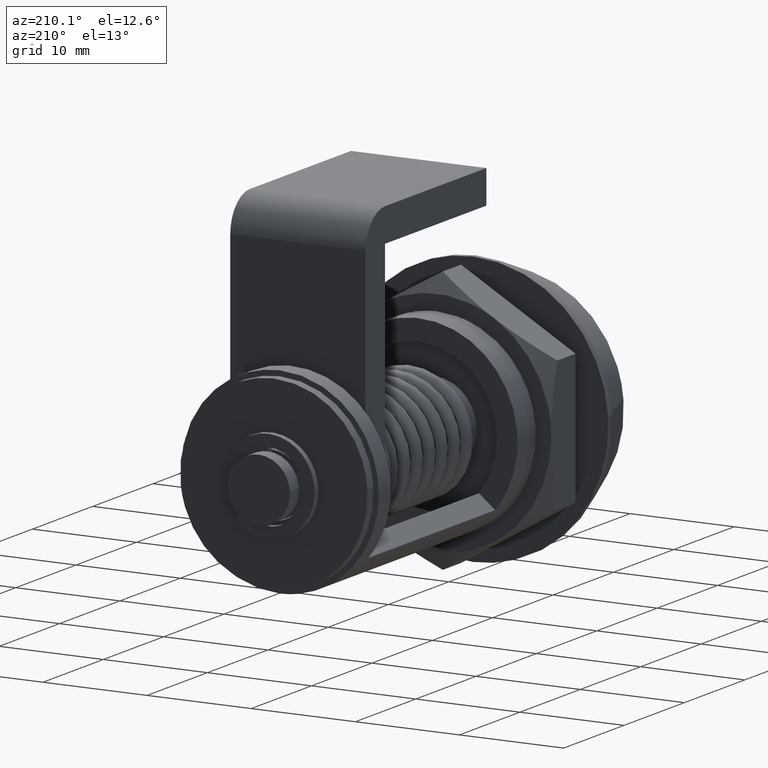
[diagram: clean part render]
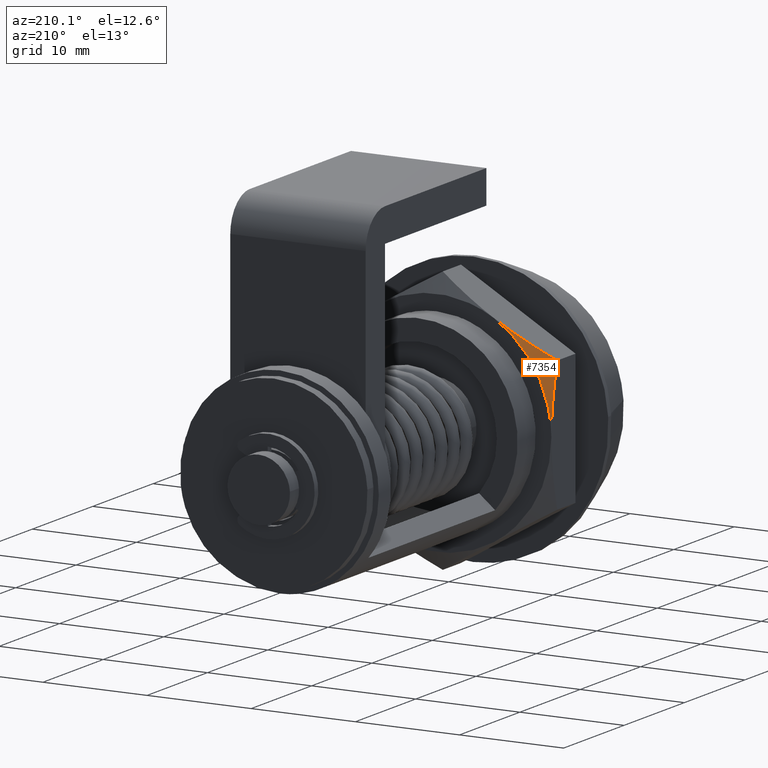
[diagram: same view with one face highlighted and labeled with its STEP entity id]
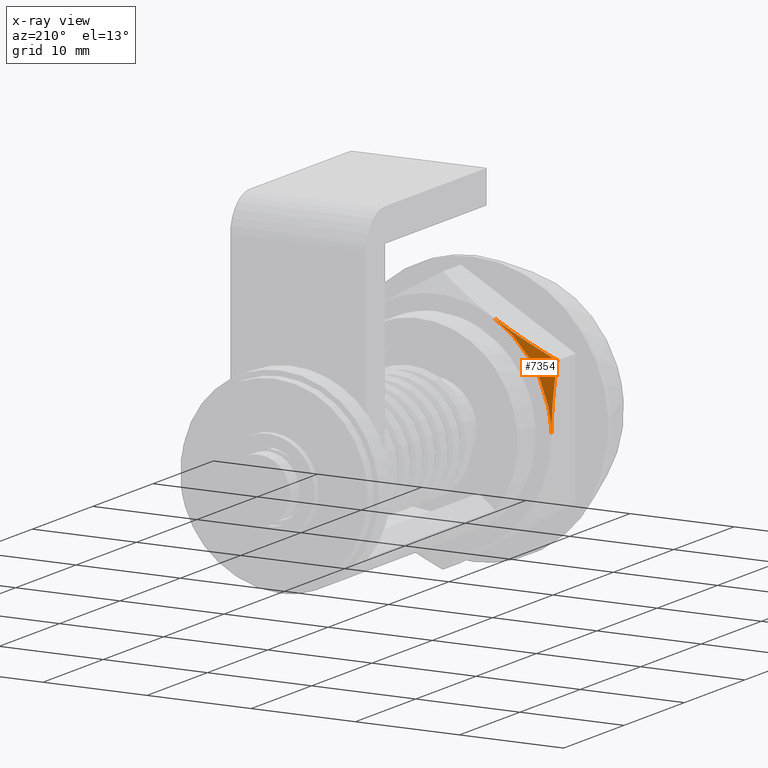
[diagram: x-ray of the same camera — body ghosted, the highlighted face saturated]
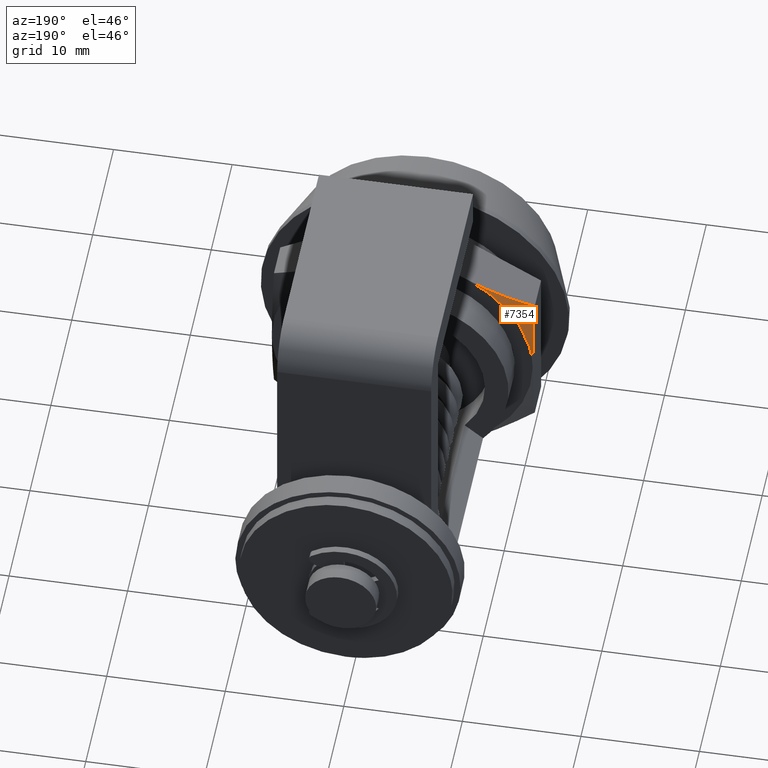
[diagram: same view with one face highlighted and labeled with its STEP entity id]
A machine part, auxiliary view. The second image highlights one B-rep face of the part: STEP entity #7354.
The next image is the same camera in x-ray: the body ghosted, the highlighted face saturated — about 0% of this face is hidden behind the body in this view.
A second angle (auxiliary view) of the same face is appended — the face is thin or edge-on in the first view.
In plain terms, the highlighted face is a freeform B-spline surface patch.
Its self-contained STEP definition (entity closure, byte-faithful):
#6650=CARTESIAN_POINT('',(-11.0,11.018000000000001,6.349440999016940));
#6651=VERTEX_POINT('',#6650);
#6657=CARTESIAN_POINT('',(-11.0,12.0,0.0));
#6658=VERTEX_POINT('',#6657);
#6659=CARTESIAN_POINT('',(-11.0,12.0,0.0));
#6660=CARTESIAN_POINT('',(-11.0,11.999999999841791,0.000637195823200));
#6661=CARTESIAN_POINT('',(-11.0,11.999999968036571,0.001274393652179));
#6662=CARTESIAN_POINT('',(-11.0,11.999946066091979,0.538546525339039));
#6663=CARTESIAN_POINT('',(-11.0,11.977100441090251,1.076899217801609));
#6664=CARTESIAN_POINT('',(-11.0,11.920422918939369,1.751959455736227));
#6665=CARTESIAN_POINT('',(-11.0,11.907689925679909,1.887014804814034));
#6666=CARTESIAN_POINT('',(-11.0,11.879610959126341,2.156102108140201));
#6667=CARTESIAN_POINT('',(-11.0,11.833537237649450,2.558658193784106));
#6668=CARTESIAN_POINT('',(-11.0,11.776025942188991,2.958106048500096));
#6669=CARTESIAN_POINT('',(-11.0,11.560913517108030,4.283237600842157));
#6670=CARTESIAN_POINT('',(-11.0,11.314216980539809,5.323068042219537));
#6671=CARTESIAN_POINT('',(-11.0,11.018000000000001,6.349440999016940));
#6672=B_SPLINE_CURVE_WITH_KNOTS('',3,(#6659,#6660,#6661,#6662,#6663,#6664,#6665,#6666,#6667,#6668,#6669,#6670,#6671),.UNSPECIFIED.,.F.,.U.,(4,2,2,2,1,2,4),(0.499851575015758,0.500000000000000,0.625000000000000,0.656250000000000,0.687500000000000,0.750000000000000,1.0),.UNSPECIFIED.);
#6673=EDGE_CURVE('',#6658,#6651,#6672,.T.);
#6721=CARTESIAN_POINT('',(-5.499999999999940,12.0,9.526279441628731));
#6722=VERTEX_POINT('',#6721);
#6736=CARTESIAN_POINT('',(-10.998777204979060,11.018000000000001,6.351558942120250));
#6737=VERTEX_POINT('',#6736);
#6738=CARTESIAN_POINT('',(-10.998777204979060,11.018000000000001,6.351558942120250));
#6739=CARTESIAN_POINT('',(-10.100924649613470,11.317212092567530,6.869934356653232));
#6740=CARTESIAN_POINT('',(-9.196528830908518,11.563809074764301,7.392087526036506));
#6741=CARTESIAN_POINT('',(-7.825796843844551,11.820017230355351,8.183480007754719));
#6742=CARTESIAN_POINT('',(-7.366524168740320,11.886426740898930,8.448641210357588));
#6743=CARTESIAN_POINT('',(-6.442633397844958,11.976262637995220,8.982049795635838));
#6744=CARTESIAN_POINT('',(-5.978010687067303,11.999651914926510,9.250299842774927));
#6745=CARTESIAN_POINT('',(-5.507014978019104,11.999998708572621,9.522229342181062));
#6746=CARTESIAN_POINT('',(-5.503507618487380,11.999999989974521,9.524254317150847));
#6747=CARTESIAN_POINT('',(-5.499999999999940,12.0,9.526279441628731));
#6748=B_SPLINE_CURVE_WITH_KNOTS('',3,(#6738,#6739,#6740,#6741,#6742,#6743,#6744,#6745,#6746,#6747),.UNSPECIFIED.,.F.,.U.,(4,2,2,2,4),(0.0,0.250000000000000,0.375000000000000,0.500000000000000,0.500937748182289),.UNSPECIFIED.);
#6749=EDGE_CURVE('',#6737,#6722,#6748,.T.);
#7044=CARTESIAN_POINT('',(-5.499999999999940,12.0,9.526279441628731));
#7045=CARTESIAN_POINT('',(-11.0,11.999999999999996,6.350852961085889));
#7046=CARTESIAN_POINT('',(-11.0,12.0,2.313281E-016));
#7054=(BOUNDED_CURVE()B_SPLINE_CURVE(2,(#7044,#7045,#7046),.UNSPECIFIED.,.F.,.U.)CURVE()GEOMETRIC_REPRESENTATION_ITEM()QUASI_UNIFORM_CURVE()RATIONAL_B_SPLINE_CURVE((1.0,0.866025403784439,1.0))REPRESENTATION_ITEM(''));
#7055=EDGE_CURVE('',#6722,#6658,#7054,.T.);
#7322=CARTESIAN_POINT('',(-10.947091876718330,12.024550000000000,-0.476904412127431));
#7323=CARTESIAN_POINT('',(-12.732511562682969,10.992836250000000,-0.554685299994699));
#7324=CARTESIAN_POINT('',(-11.250913494932600,12.024550000000009,6.497162264857110));
#7325=CARTESIAN_POINT('',(-13.085885071416680,10.992836249999998,7.556819161978166));
#7326=CARTESIAN_POINT('',(-5.058663122437656,12.024550000000000,9.719886099605716));
#7327=CARTESIAN_POINT('',(-5.883707510954388,10.992836250000000,11.305154240496890));
#7335=(BOUNDED_SURFACE()B_SPLINE_SURFACE(1,2,((#7322,#7324,#7326),(#7323,#7325,#7327)),.UNSPECIFIED.,.F.,.F.,.U.)B_SPLINE_SURFACE_WITH_KNOTS((2,2),(3,3),(0.0,2.063542241749988),(0.0,14.858834728039740),.UNSPECIFIED.)GEOMETRIC_REPRESENTATION_ITEM()RATIONAL_B_SPLINE_SURFACE(((1.0,0.843391445812886,1.0),(1.0,0.843391445812886,1.0)))REPRESENTATION_ITEM('')SURFACE());
#7336=ORIENTED_EDGE('',*,*,#7055,.T.);
#7337=ORIENTED_EDGE('',*,*,#6673,.T.);
#7338=CARTESIAN_POINT('',(-10.998777204979071,11.018000000000001,6.351558942120255));
#7339=CARTESIAN_POINT('',(-10.999388704446773,11.018000000000006,6.350500029423772));
#7340=CARTESIAN_POINT('',(-11.0,11.018000000000001,6.349440999016940));
#7348=(BOUNDED_CURVE()B_SPLINE_CURVE(2,(#7338,#7339,#7340),.UNSPECIFIED.,.F.,.U.)CURVE()GEOMETRIC_REPRESENTATION_ITEM()QUASI_UNIFORM_CURVE()RATIONAL_B_SPLINE_CURVE((1.0,0.999999995365515,1.0))REPRESENTATION_ITEM(''));
#7349=EDGE_CURVE('',#6737,#6651,#7348,.T.);
#7350=ORIENTED_EDGE('',*,*,#7349,.F.);
#7351=ORIENTED_EDGE('',*,*,#6749,.T.);
#7352=EDGE_LOOP('',(#7336,#7337,#7350,#7351));
#7353=FACE_OUTER_BOUND('',#7352,.T.);
#7354=ADVANCED_FACE('',(#7353),#7335,.T.);